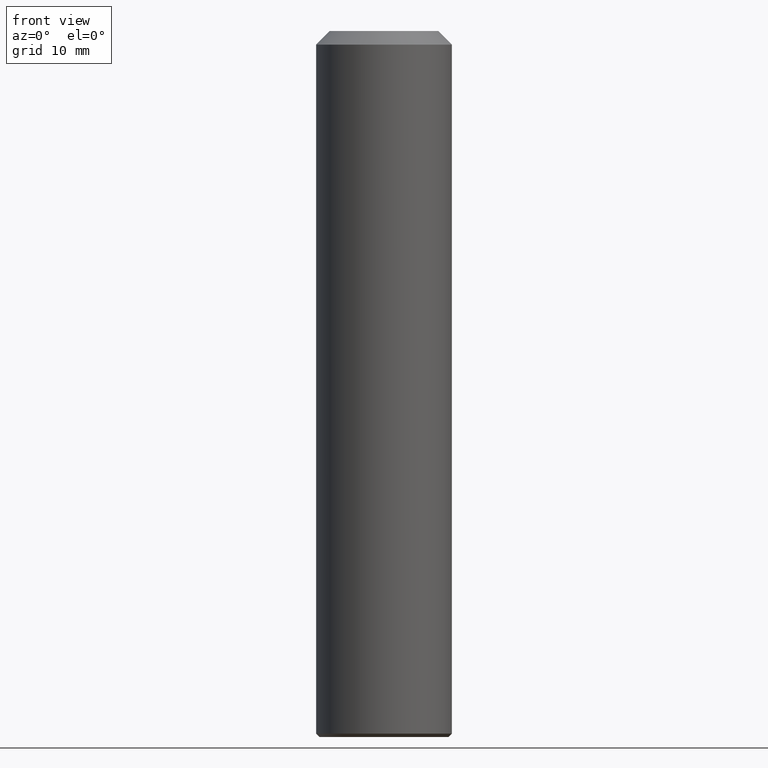
[diagram: clean part render]
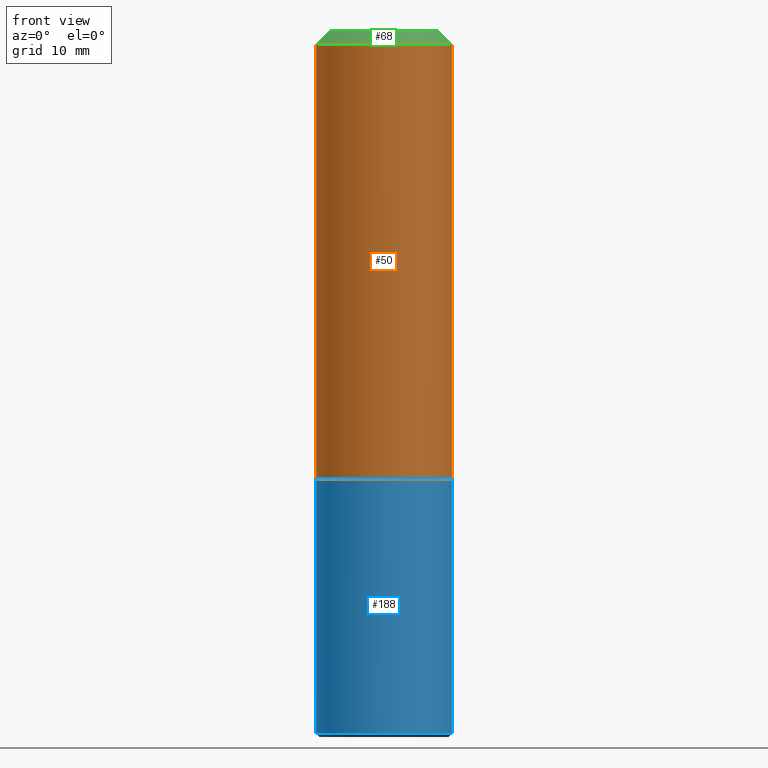
[diagram: same view with three faces highlighted in distinct colors, each labeled with its STEP entity id]
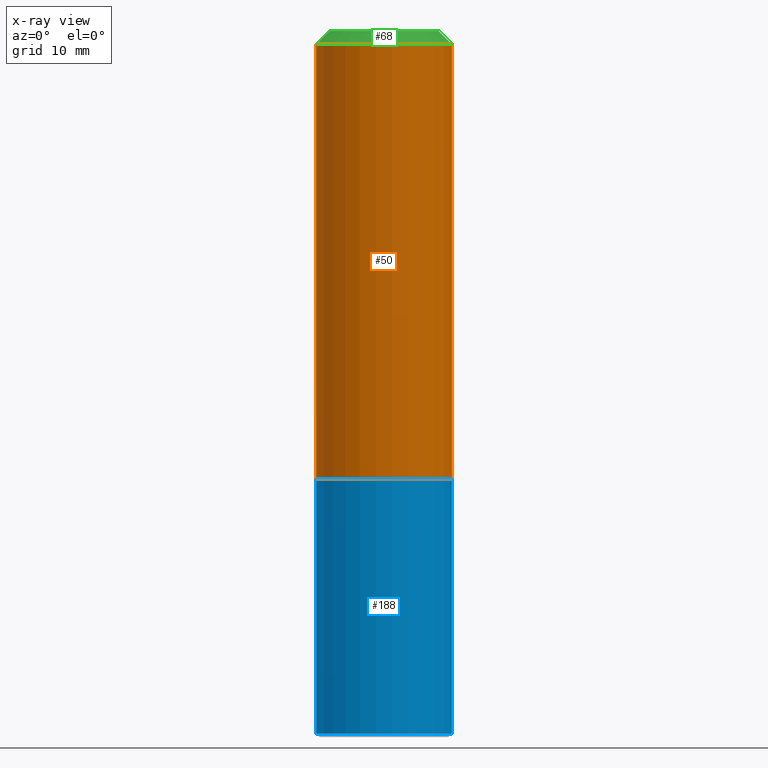
[diagram: x-ray of the same camera — body ghosted, the three highlighted faces saturated]
A machine part, front view with three faces highlighted in distinct colors.
The next image is the same camera in x-ray (body ghosted, the three faces saturated) — at least one of them is partly hidden behind the body in this view.
Their STEP definitions:

[orange] entity #50 — the highlighted cylindrical surface (bore or boss wall) has radius 10 mm, axis along (0, 0, 1).
#12 = EDGE_CURVE ( 'NONE', #137, #137, #170, .T. ) ;
#18 = EDGE_LOOP ( 'NONE', ( #141 ) ) ;
#26 = DIRECTION ( 'NONE',  ( -6.982962677686267499E-15, -0.0000000000000000000, -1.000000000000000000 ) ) ;
#28 = DIRECTION ( 'NONE',  ( 6.982962677686266711E-15, 0.0000000000000000000, 1.000000000000000000 ) ) ;
#50 = ADVANCED_FACE ( 'NONE', ( #186, #150 ), #129, .T. ) ;
#53 = ORIENTED_EDGE ( 'NONE', *, *, #158, .F. ) ;
#59 = CARTESIAN_POINT ( 'NONE',  ( -4.608755367272936534E-13, 0.0000000000000000000, -66.00000000000000000 ) ) ;
#69 = DIRECTION ( 'NONE',  ( 1.000000000000000000, 0.0000000000000000000, -6.938893903907228378E-15 ) ) ;
#86 = EDGE_LOOP ( 'NONE', ( #53 ) ) ;
#93 = DIRECTION ( 'NONE',  ( 1.000000000000000000, 0.0000000000000000000, -6.938893903907228378E-15 ) ) ;
#103 = VERTEX_POINT ( 'NONE', #206 ) ;
#116 = DIRECTION ( 'NONE',  ( 6.982962677686266711E-15, 0.0000000000000000000, 1.000000000000000000 ) ) ;
#121 = AXIS2_PLACEMENT_3D ( 'NONE', #200, #28, #69 ) ;
#129 = CYLINDRICAL_SURFACE ( 'NONE', #121, 10.00000000000000000 ) ;
#137 = VERTEX_POINT ( 'NONE', #172 ) ;
#141 = ORIENTED_EDGE ( 'NONE', *, *, #12, .F. ) ;
#147 = AXIS2_PLACEMENT_3D ( 'NONE', #59, #26, #93 ) ;
#150 = FACE_OUTER_BOUND ( 'NONE', #86, .T. ) ;
#155 = CIRCLE ( 'NONE', #178, 10.00000000000000000 ) ;
#158 = EDGE_CURVE ( 'NONE', #103, #103, #155, .T. ) ;
#170 = CIRCLE ( 'NONE', #147, 10.00000000000000000 ) ;
#172 = CARTESIAN_POINT ( 'NONE',  ( 9.999999999999538147, 0.0000000000000000000, -66.00000000000007105 ) ) ;
#178 = AXIS2_PLACEMENT_3D ( 'NONE', #213, #116, #187 ) ;
#186 = FACE_OUTER_BOUND ( 'NONE', #18, .T. ) ;
#187 = DIRECTION ( 'NONE',  ( 1.000000000000000000, 0.0000000000000000000, -6.982261990806648555E-15 ) ) ;
#200 = CARTESIAN_POINT ( 'NONE',  ( -7.262281184793717379E-13, 0.0000000000000000000, -104.0000000000000000 ) ) ;
#206 = CARTESIAN_POINT ( 'NONE',  ( 9.999999999999985789, 0.0000000000000000000, -2.000000000000071498 ) ) ;
#213 = CARTESIAN_POINT ( 'NONE',  ( -1.396592535537254604E-14, 0.0000000000000000000, -2.000000000000001776 ) ) ;

[blue] entity #188 — the highlighted cylindrical surface (bore or boss wall) has radius 10 mm, axis along (0, 0, 1).
#3 = ORIENTED_EDGE ( 'NONE', *, *, #176, .T. ) ;
#5 = FACE_OUTER_BOUND ( 'NONE', #179, .T. ) ;
#9 = DIRECTION ( 'NONE',  ( -7.337712398762083409E-15, 0.0000000000000000000, -1.000000000000000000 ) ) ;
#24 = FACE_OUTER_BOUND ( 'NONE', #109, .T. ) ;
#73 = ORIENTED_EDGE ( 'NONE', *, *, #77, .F. ) ;
#77 = EDGE_CURVE ( 'NONE', #173, #173, #97, .T. ) ;
#81 = VERTEX_POINT ( 'NONE', #82 ) ;
#82 = CARTESIAN_POINT ( 'NONE',  ( 9.999999999999538147, 0.0000000000000000000, -66.00000000000007105 ) ) ;
#97 = CIRCLE ( 'NONE', #145, 10.00000000000000533 ) ;
#99 = DIRECTION ( 'NONE',  ( -6.982962677686267499E-15, -0.0000000000000000000, -1.000000000000000000 ) ) ;
#109 = EDGE_LOOP ( 'NONE', ( #73 ) ) ;
#118 = AXIS2_PLACEMENT_3D ( 'NONE', #214, #128, #133 ) ;
#127 = CIRCLE ( 'NONE', #184, 10.00000000000000000 ) ;
#128 = DIRECTION ( 'NONE',  ( 6.982962677686266711E-15, 0.0000000000000000000, 1.000000000000000000 ) ) ;
#133 = DIRECTION ( 'NONE',  ( 1.000000000000000000, 0.0000000000000000000, -6.938893903907228378E-15 ) ) ;
#145 = AXIS2_PLACEMENT_3D ( 'NONE', #169, #9, #217 ) ;
#149 = CYLINDRICAL_SURFACE ( 'NONE', #118, 10.00000000000000000 ) ;
#156 = CARTESIAN_POINT ( 'NONE',  ( -10.00000000000074074, 0.0000000000000000000, -103.4999999999999147 ) ) ;
#169 = CARTESIAN_POINT ( 'NONE',  ( -7.359903637248369730E-13, 0.0000000000000000000, -103.4999999999999858 ) ) ;
#173 = VERTEX_POINT ( 'NONE', #156 ) ;
#176 = EDGE_CURVE ( 'NONE', #81, #81, #127, .T. ) ;
#179 = EDGE_LOOP ( 'NONE', ( #3 ) ) ;
#182 = DIRECTION ( 'NONE',  ( 1.000000000000000000, 0.0000000000000000000, -6.938893903907228378E-15 ) ) ;
#184 = AXIS2_PLACEMENT_3D ( 'NONE', #189, #99, #182 ) ;
#188 = ADVANCED_FACE ( 'NONE', ( #24, #5 ), #149, .T. ) ;
#189 = CARTESIAN_POINT ( 'NONE',  ( -4.608755367272936534E-13, 0.0000000000000000000, -66.00000000000000000 ) ) ;
#214 = CARTESIAN_POINT ( 'NONE',  ( -7.262281184793717379E-13, 0.0000000000000000000, -104.0000000000000000 ) ) ;
#217 = DIRECTION ( 'NONE',  ( -1.000000000000000000, 0.0000000000000000000, 6.938893903907224433E-15 ) ) ;

[green] entity #68 — the highlighted conical surface has half-angle 45 deg.
#7 = CARTESIAN_POINT ( 'NONE',  ( 0.0000000000000000000, 0.0000000000000000000, 0.0000000000000000000 ) ) ;
#14 = CARTESIAN_POINT ( 'NONE',  ( 7.999999999999992895, 0.0000000000000000000, -5.586370142149008320E-14 ) ) ;
#23 = EDGE_LOOP ( 'NONE', ( #181 ) ) ;
#29 = DIRECTION ( 'NONE',  ( 6.982962677686266711E-15, 0.0000000000000000000, 1.000000000000000000 ) ) ;
#32 = VERTEX_POINT ( 'NONE', #14 ) ;
#41 = FACE_BOUND ( 'NONE', #23, .T. ) ;
#47 = AXIS2_PLACEMENT_3D ( 'NONE', #7, #76, #62 ) ;
#56 = ORIENTED_EDGE ( 'NONE', *, *, #158, .T. ) ;
#57 = CIRCLE ( 'NONE', #74, 7.999999999999992895 ) ;
#62 = DIRECTION ( 'NONE',  ( -1.000000000000000000, 0.0000000000000000000, 6.982962677686266711E-15 ) ) ;
#68 = ADVANCED_FACE ( 'NONE', ( #95, #41 ), #194, .T. ) ;
#74 = AXIS2_PLACEMENT_3D ( 'NONE', #117, #29, #96 ) ;
#76 = DIRECTION ( 'NONE',  ( -6.982962677686266711E-15, 0.0000000000000000000, -1.000000000000000000 ) ) ;
#95 = FACE_OUTER_BOUND ( 'NONE', #192, .T. ) ;
#96 = DIRECTION ( 'NONE',  ( 1.000000000000000000, 0.0000000000000000000, -6.982962677686266711E-15 ) ) ;
#103 = VERTEX_POINT ( 'NONE', #206 ) ;
#116 = DIRECTION ( 'NONE',  ( 6.982962677686266711E-15, 0.0000000000000000000, 1.000000000000000000 ) ) ;
#117 = CARTESIAN_POINT ( 'NONE',  ( 0.0000000000000000000, 0.0000000000000000000, 0.0000000000000000000 ) ) ;
#155 = CIRCLE ( 'NONE', #178, 10.00000000000000000 ) ;
#158 = EDGE_CURVE ( 'NONE', #103, #103, #155, .T. ) ;
#175 = EDGE_CURVE ( 'NONE', #32, #32, #57, .T. ) ;
#178 = AXIS2_PLACEMENT_3D ( 'NONE', #213, #116, #187 ) ;
#181 = ORIENTED_EDGE ( 'NONE', *, *, #175, .F. ) ;
#187 = DIRECTION ( 'NONE',  ( 1.000000000000000000, 0.0000000000000000000, -6.982261990806648555E-15 ) ) ;
#192 = EDGE_LOOP ( 'NONE', ( #56 ) ) ;
#194 = CONICAL_SURFACE ( 'NONE', #47, 7.999999999999992895, 0.7853981633974496113 ) ;
#206 = CARTESIAN_POINT ( 'NONE',  ( 9.999999999999985789, 0.0000000000000000000, -2.000000000000071498 ) ) ;
#213 = CARTESIAN_POINT ( 'NONE',  ( -1.396592535537254604E-14, 0.0000000000000000000, -2.000000000000001776 ) ) ;